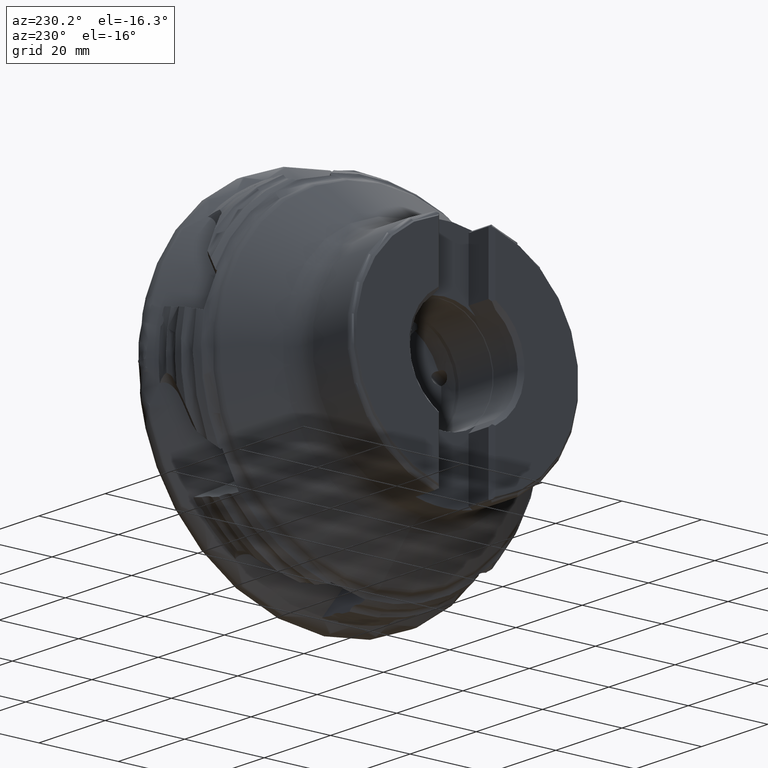
[diagram: clean part render]
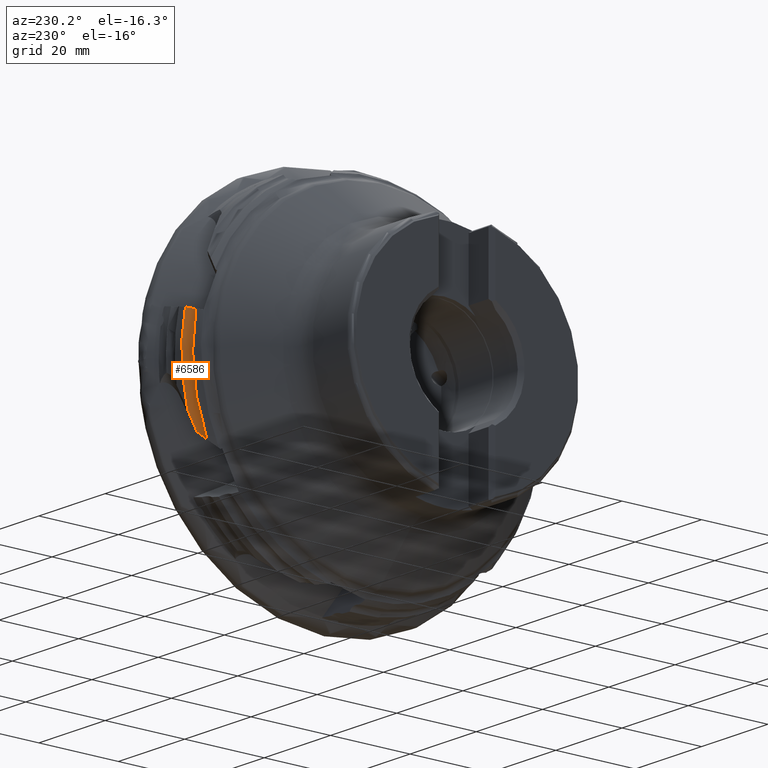
[diagram: same view with one face highlighted and labeled with its STEP entity id]
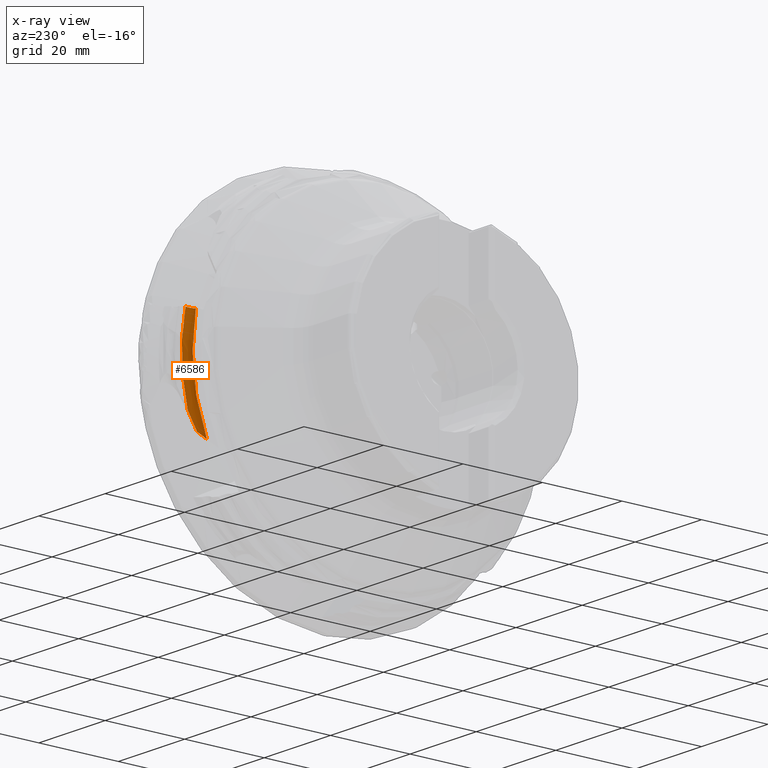
[diagram: x-ray of the same camera — body ghosted, the highlighted face saturated]
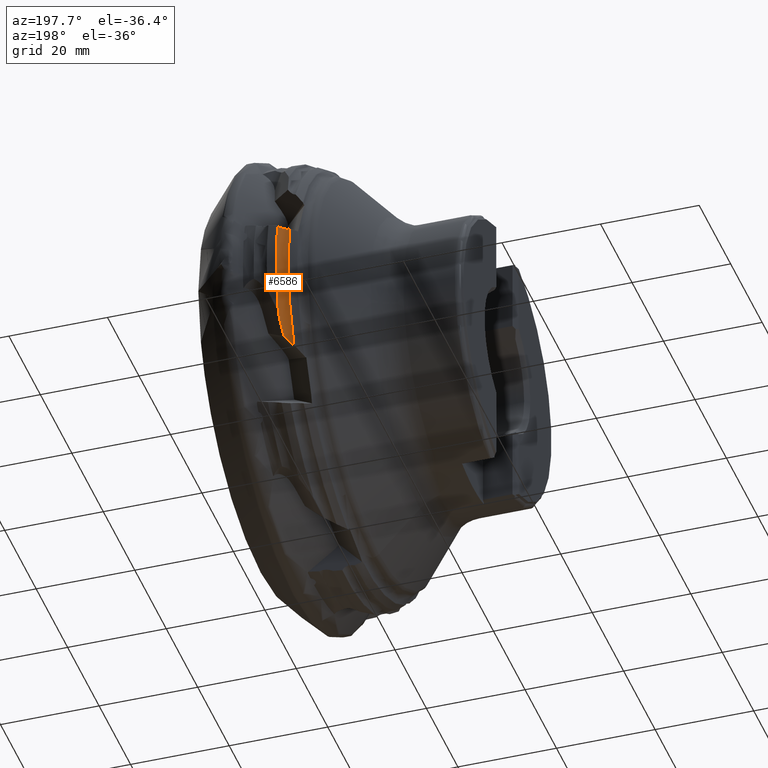
[diagram: same view with one face highlighted and labeled with its STEP entity id]
A machine part, auxiliary view. The second image highlights one B-rep face of the part: STEP entity #6586.
The next image is the same camera in x-ray: the body ghosted, the highlighted face saturated — about 0% of this face is hidden behind the body in this view.
A second angle (auxiliary view) of the same face is appended — the face is thin or edge-on in the first view.
In plain terms, the highlighted toroidal blend (fillet) surface has major radius 45.2499 mm and minor (blend) radius 1.8 mm.
Its self-contained STEP definition (entity closure, byte-faithful):
#7 = CARTESIAN_POINT ( 'NONE',  ( -16.69275455914372600, 43.16699642272637000, 9.047681633129411000 ) ) ;
#139 = CARTESIAN_POINT ( 'NONE',  ( -18.09830178995865800, 0.0000000000000000000, 0.0000000000000000000 ) ) ;
#237 = EDGE_CURVE ( 'NONE', #646, #4003, #6467, .T. ) ;
#295 = CARTESIAN_POINT ( 'NONE',  ( -16.92549106874982500, 40.98287429007628200, -15.69222810819663000 ) ) ;
#637 = ORIENTED_EDGE ( 'NONE', *, *, #9383, .T. ) ;
#646 = VERTEX_POINT ( 'NONE', #7098 ) ;
#653 = DIRECTION ( 'NONE',  ( 1.000000000000000000, -0.0000000000000000000, -0.0000000000000000000 ) ) ;
#687 = CARTESIAN_POINT ( 'NONE',  ( -18.60663119193741000, 42.68388411029278700, 8.505955542831500800 ) ) ;
#784 = CARTESIAN_POINT ( 'NONE',  ( -16.47416143517242700, 43.52101424414422600, 9.156886277976882500 ) ) ;
#1097 = CARTESIAN_POINT ( 'NONE',  ( -16.92549106874982500, 40.98287429007628200, -15.69222810819663000 ) ) ;
#1160 = CARTESIAN_POINT ( 'NONE',  ( -17.40353280595659800, 40.45034516236210500, -16.22691675698409600 ) ) ;
#1166 = DIRECTION ( 'NONE',  ( 1.000000000000000000, -0.0000000000000000000, -0.0000000000000000000 ) ) ;
#1192 = AXIS2_PLACEMENT_3D ( 'NONE', #5390, #653, #6200 ) ;
#1229 = VERTEX_POINT ( 'NONE', #8397 ) ;
#1304 = CIRCLE ( 'NONE', #3982, 44.47389399576796600 ) ;
#1962 = CARTESIAN_POINT ( 'NONE',  ( -17.81880319399843100, 40.14817737267672000, -16.65619558414069300 ) ) ;
#2413 = ORIENTED_EDGE ( 'NONE', *, *, #4477, .F. ) ;
#2749 = CARTESIAN_POINT ( 'NONE',  ( -18.27753643745860400, 39.94555156449591500, -17.10177865776388400 ) ) ;
#2763 = AXIS2_PLACEMENT_3D ( 'NONE', #139, #8034, #5672 ) ;
#3091 = EDGE_CURVE ( 'NONE', #4003, #4517, #5303, .T. ) ;
#3123 = CARTESIAN_POINT ( 'NONE',  ( -18.19617054836251300, 42.58243890549784500, 8.589659432226286000 ) ) ;
#3320 = CARTESIAN_POINT ( 'NONE',  ( -16.92549106874982500, 40.98287429007628200, -15.69222810819663000 ) ) ;
#3533 = CARTESIAN_POINT ( 'NONE',  ( -18.60663119193740700, 39.89314481904927600, -17.40121371870054300 ) ) ;
#3581 = CARTESIAN_POINT ( 'NONE',  ( -18.60663119193740700, 39.89314481904927600, -17.40121371870054300 ) ) ;
#3939 = CARTESIAN_POINT ( 'NONE',  ( -17.56954774462656100, 42.62755084516524600, 8.749118525553365400 ) ) ;
#3982 = AXIS2_PLACEMENT_3D ( 'NONE', #5914, #1166, #6719 ) ;
#3986 = B_SPLINE_CURVE_WITH_KNOTS ( 'NONE', 3,
 ( #7092, #9289, #3123, #8690, #3939, #9470, #4720, #7, #5529, #784 ),
 .UNSPECIFIED., .F., .F.,
 ( 4, 2, 2, 2, 4 ),
 ( 2.114671810289460200E-007, 0.0006441908368043403400, 0.001288170206427651600, 0.001932149576050963000, 0.002576128945674274600 ),
 .UNSPECIFIED. ) ;
#4003 = VERTEX_POINT ( 'NONE', #3320 ) ;
#4224 = CARTESIAN_POINT ( 'NONE',  ( -16.85357449924738300, 41.31269442734454600, -15.00359042420809000 ) ) ;
#4270 = CARTESIAN_POINT ( 'NONE',  ( -17.03392615493481800, 40.83436981416571100, -15.81961265111889100 ) ) ;
#4477 = EDGE_CURVE ( 'NONE', #646, #1229, #1304, .T. ) ;
#4517 = VERTEX_POINT ( 'NONE', #3581 ) ;
#4720 = CARTESIAN_POINT ( 'NONE',  ( -17.00252584519676400, 42.88628231040232200, 8.927924354356994400 ) ) ;
#4964 = ORIENTED_EDGE ( 'NONE', *, *, #3091, .T. ) ;
#5004 = EDGE_LOOP ( 'NONE', ( #2413, #9766, #4964, #10052, #637 ) ) ;
#5303 = B_SPLINE_CURVE_WITH_KNOTS ( 'NONE', 3,
 ( #1097, #4270, #5911, #1160, #6715, #1962, #7502, #2749, #8311, #3533 ),
 .UNSPECIFIED., .F., .F.,
 ( 4, 2, 2, 2, 4 ),
 ( 0.001119573720434465800, 0.001786638701404891300, 0.002453703682375316600, 0.003120768663345742400, 0.003787833644316168100 ),
 .UNSPECIFIED. ) ;
#5390 = CARTESIAN_POINT ( 'NONE',  ( -18.60663119193741000, 0.0000000000000000000, 0.0000000000000000000 ) ) ;
#5529 = CARTESIAN_POINT ( 'NONE',  ( -16.56794733669926600, 43.33153536347575900, 9.104079103843249100 ) ) ;
#5672 = DIRECTION ( 'NONE',  ( 0.0000000000000000000, 0.0000000000000000000, -1.000000000000000000 ) ) ;
#5722 = CARTESIAN_POINT ( 'NONE',  ( -16.47416143517242300, 42.94658674559137500, -11.55499606448230500 ) ) ;
#5799 = CARTESIAN_POINT ( 'NONE',  ( -16.54232057695885100, 42.61382318092945100, -12.24271673927908700 ) ) ;
#5911 = CARTESIAN_POINT ( 'NONE',  ( -17.15263673179019900, 40.69693062170389200, -15.95352630572837600 ) ) ;
#5914 = CARTESIAN_POINT ( 'NONE',  ( -16.47416143517242700, 0.0000000000000000000, 0.0000000000000000000 ) ) ;
#6200 = DIRECTION ( 'NONE',  ( 0.0000000000000000000, 0.0000000000000000000, -1.000000000000000000 ) ) ;
#6467 = B_SPLINE_CURVE_WITH_KNOTS ( 'NONE', 3,
 ( #5722, #5799, #9736, #7384, #4224, #295 ),
 .UNSPECIFIED., .F., .F.,
 ( 4, 2, 4 ),
 ( 2.250860040506546300E-006, 0.002303168143427300800, 0.004604085426814095300 ),
 .UNSPECIFIED. ) ;
#6586 = ADVANCED_FACE ( 'NONE', ( #7184 ), #9010, .F. ) ;
#6715 = CARTESIAN_POINT ( 'NONE',  ( -17.53646511231406500, 40.34006283881240800, -16.36729552633764200 ) ) ;
#6719 = DIRECTION ( 'NONE',  ( 0.0000000000000000000, 0.0000000000000000000, -1.000000000000000000 ) ) ;
#7092 = CARTESIAN_POINT ( 'NONE',  ( -18.60663119193741000, 42.68388411029278700, 8.505955542831500800 ) ) ;
#7098 = CARTESIAN_POINT ( 'NONE',  ( -16.47416143517242300, 42.94658674559137500, -11.55499606448230500 ) ) ;
#7184 = FACE_OUTER_BOUND ( 'NONE', #5004, .T. ) ;
#7384 = CARTESIAN_POINT ( 'NONE',  ( -16.77557724688014300, 41.63784340296268000, -14.31330847603818900 ) ) ;
#7502 = CARTESIAN_POINT ( 'NONE',  ( -17.96856531214919900, 40.06670282263521400, -16.80500057568929900 ) ) ;
#8034 = DIRECTION ( 'NONE',  ( 1.000000000000000000, -0.0000000000000000000, -0.0000000000000000000 ) ) ;
#8311 = CARTESIAN_POINT ( 'NONE',  ( -18.43772548638840900, 39.90445436053195000, -17.25091890048023300 ) ) ;
#8397 = CARTESIAN_POINT ( 'NONE',  ( -16.47416143517242700, 43.52101424414422600, 9.156886277976882500 ) ) ;
#8690 = CARTESIAN_POINT ( 'NONE',  ( -17.77345726721588200, 42.58863853212126600, 8.693390853412163100 ) ) ;
#9010 = TOROIDAL_SURFACE ( 'NONE', #2763, 45.24988891067066300, 1.800000000000000500 ) ;
#9152 = EDGE_CURVE ( 'NONE', #4517, #9215, #10163, .T. ) ;
#9215 = VERTEX_POINT ( 'NONE', #687 ) ;
#9289 = CARTESIAN_POINT ( 'NONE',  ( -18.40361027023692500, 42.61527341452281800, 8.544437249963369400 ) ) ;
#9383 = EDGE_CURVE ( 'NONE', #9215, #1229, #3986, .T. ) ;
#9470 = CARTESIAN_POINT ( 'NONE',  ( -17.17892482199794200, 42.77828366043578300, 8.867941507490218800 ) ) ;
#9736 = CARTESIAN_POINT ( 'NONE',  ( -16.62006089221971500, 42.28848735664101400, -12.93291091065835000 ) ) ;
#9766 = ORIENTED_EDGE ( 'NONE', *, *, #237, .T. ) ;
#10052 = ORIENTED_EDGE ( 'NONE', *, *, #9152, .T. ) ;
#10163 = CIRCLE ( 'NONE', #1192, 43.52315754213533000 ) ;